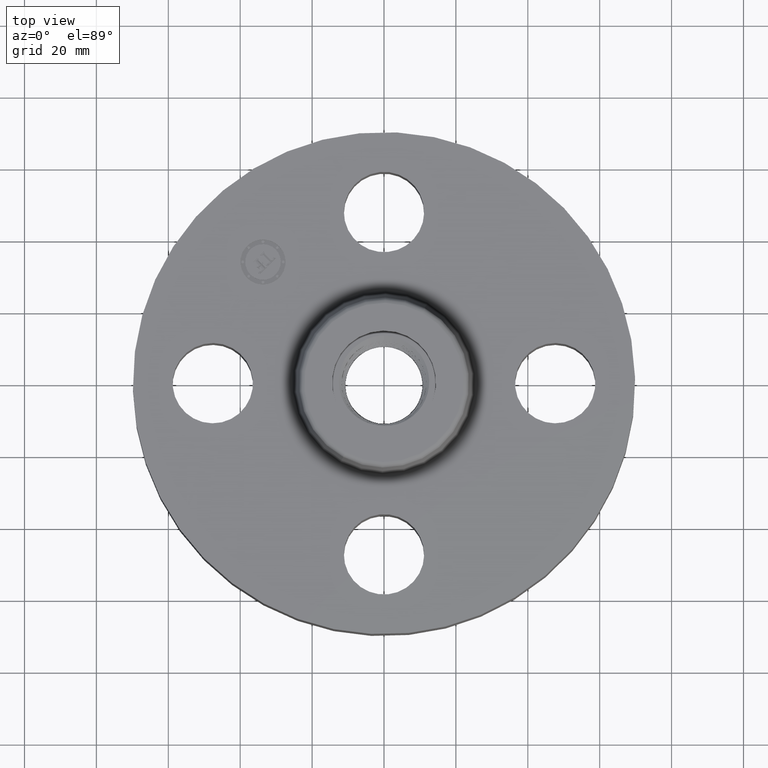
[diagram: clean part render]
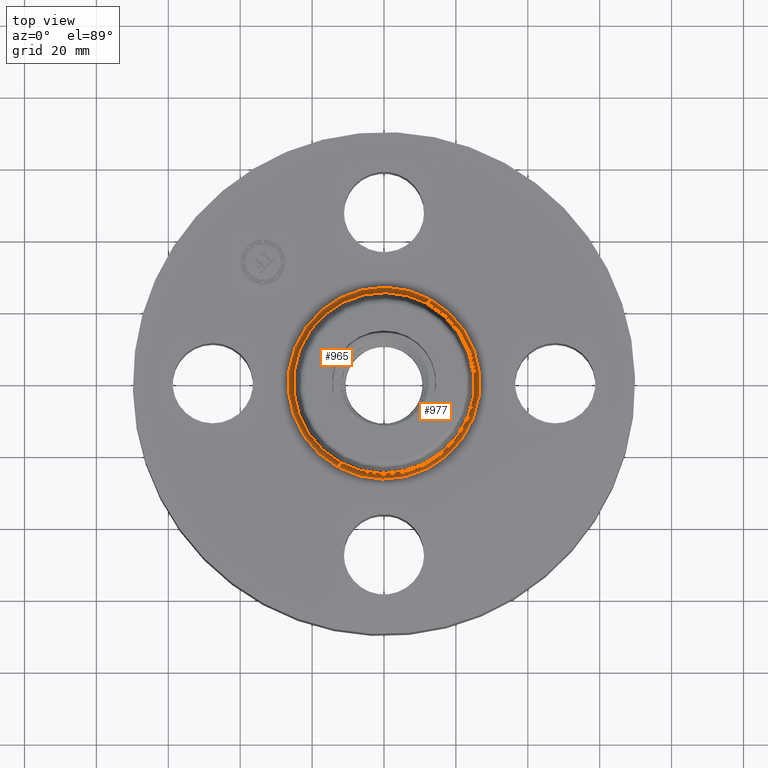
[diagram: same view with one multi-face feature highlighted, each face labeled with its STEP entity id]
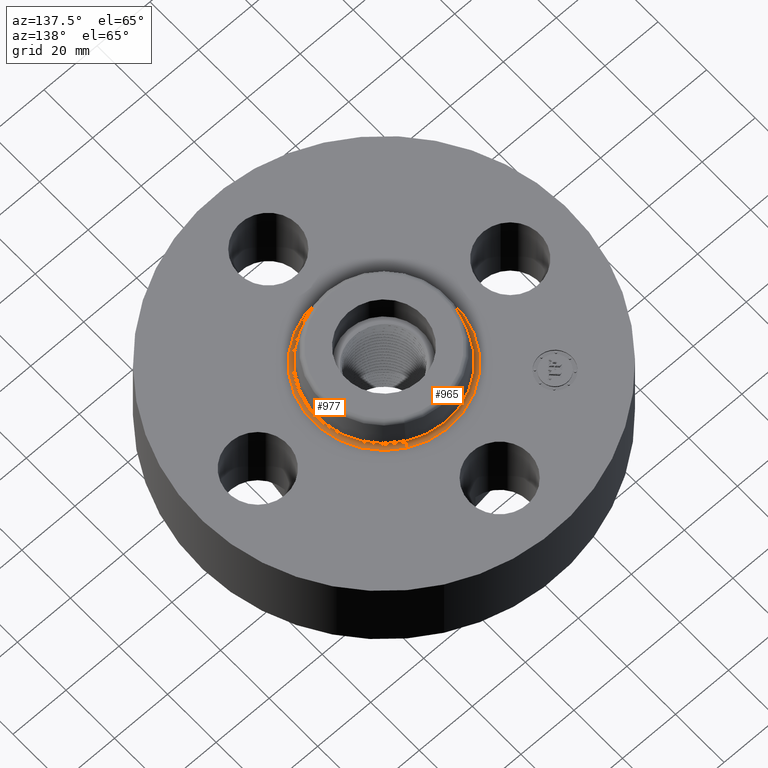
[diagram: same view with one multi-face feature highlighted, each face labeled with its STEP entity id]
A machine part, top view. The highlighted faces form ONE feature: a constant-radius fillet chain: 2 tangent blend faces with common blend radius 1.524 mm. The faces share edges in the B-rep.
A second angle (auxiliary view) of the same feature is appended — it is thin or edge-on in the first view.
Their STEP definitions:
[1] entity #965 (Torus):
#899=AXIS2_PLACEMENT_3D('Circle Axis2P3D',#897,#898,$) ;
#938=AXIS2_PLACEMENT_3D('Torus Axis2P3D',#935,#936,#937) ;
#942=AXIS2_PLACEMENT_3D('Circle Axis2P3D',#940,#941,$) ;
#951=AXIS2_PLACEMENT_3D('Circle Axis2P3D',#949,#950,$) ;
#956=AXIS2_PLACEMENT_3D('Circle Axis2P3D',#954,#955,$) ;
#897=CARTESIAN_POINT('Axis2P3D Location',(0.,0.,1.29958110935)) ;
#901=CARTESIAN_POINT('Vertex',(-0.475234166919,-0.869910307483,1.29958110935)) ;
#903=CARTESIAN_POINT('Vertex',(0.475234166919,0.869910307483,1.29958110935)) ;
#935=CARTESIAN_POINT('Axis2P3D Location',(0.,0.,1.31000000001)) ;
#940=CARTESIAN_POINT('Axis2P3D Location',(0.,0.,1.25000000001)) ;
#944=CARTESIAN_POINT('Vertex',(-0.503562686163,-0.921765314135,1.25000000001)) ;
#946=CARTESIAN_POINT('Vertex',(0.503562686163,0.921765314135,1.25000000001)) ;
#949=CARTESIAN_POINT('Axis2P3D Location',(-0.503562686163,-0.921765314135,1.31000000001)) ;
#954=CARTESIAN_POINT('Axis2P3D Location',(0.503562686163,0.921765314135,1.31000000001)) ;
#898=DIRECTION('Axis2P3D Direction',(0.,0.,-0.0393700787402)) ;
#936=DIRECTION('Axis2P3D Direction',(0.,0.,-0.0393700787402)) ;
#937=DIRECTION('Axis2P3D XDirection',(0.0188750212049,0.0345504945626,0.)) ;
#941=DIRECTION('Axis2P3D Direction',(0.,0.,-0.0393700787402)) ;
#950=DIRECTION('Axis2P3D Direction',(0.0345504945626,-0.0188750212049,0.)) ;
#955=DIRECTION('Axis2P3D Direction',(-0.0345504945626,0.0188750212049,0.)) ;
#960=ORIENTED_EDGE('',*,*,#948,.F.) ;
#961=ORIENTED_EDGE('',*,*,#953,.T.) ;
#962=ORIENTED_EDGE('',*,*,#905,.T.) ;
#963=ORIENTED_EDGE('',*,*,#958,.F.) ;
#965=ADVANCED_FACE('PartBody',(#964),#939,.F.) ;
#900=CIRCLE('generated circle',#899,0.991257512694) ;
#943=CIRCLE('generated circle',#942,1.05034597787) ;
#952=CIRCLE('generated circle',#951,0.0600000000002) ;
#957=CIRCLE('generated circle',#956,0.0600000000002) ;
#939=TOROIDAL_SURFACE('homeo Torus',#938,1.05034597787,0.0600000000002) ;
#905=EDGE_CURVE('',#902,#904,#900,.T.) ;
#948=EDGE_CURVE('',#945,#947,#943,.T.) ;
#953=EDGE_CURVE('',#945,#902,#952,.T.) ;
#958=EDGE_CURVE('',#947,#904,#957,.T.) ;
#959=EDGE_LOOP('',(#960,#961,#962,#963)) ;
#964=FACE_OUTER_BOUND('',#959,.T.) ;
#902=VERTEX_POINT('',#901) ;
#904=VERTEX_POINT('',#903) ;
#945=VERTEX_POINT('',#944) ;
#947=VERTEX_POINT('',#946) ;
[2] entity #977 (Torus):
#925=AXIS2_PLACEMENT_3D('Circle Axis2P3D',#923,#924,$) ;
#938=AXIS2_PLACEMENT_3D('Torus Axis2P3D',#935,#936,#937) ;
#951=AXIS2_PLACEMENT_3D('Circle Axis2P3D',#949,#950,$) ;
#956=AXIS2_PLACEMENT_3D('Circle Axis2P3D',#954,#955,$) ;
#968=AXIS2_PLACEMENT_3D('Circle Axis2P3D',#966,#967,$) ;
#901=CARTESIAN_POINT('Vertex',(-0.475234166919,-0.869910307483,1.29958110935)) ;
#903=CARTESIAN_POINT('Vertex',(0.475234166919,0.869910307483,1.29958110935)) ;
#923=CARTESIAN_POINT('Axis2P3D Location',(0.,0.,1.29958110935)) ;
#935=CARTESIAN_POINT('Axis2P3D Location',(0.,0.,1.31000000001)) ;
#944=CARTESIAN_POINT('Vertex',(-0.503562686163,-0.921765314135,1.25000000001)) ;
#946=CARTESIAN_POINT('Vertex',(0.503562686163,0.921765314135,1.25000000001)) ;
#949=CARTESIAN_POINT('Axis2P3D Location',(-0.503562686163,-0.921765314135,1.31000000001)) ;
#954=CARTESIAN_POINT('Axis2P3D Location',(0.503562686163,0.921765314135,1.31000000001)) ;
#966=CARTESIAN_POINT('Axis2P3D Location',(0.,0.,1.25000000001)) ;
#924=DIRECTION('Axis2P3D Direction',(0.,0.,-0.0393700787402)) ;
#936=DIRECTION('Axis2P3D Direction',(0.,0.,-0.0393700787402)) ;
#937=DIRECTION('Axis2P3D XDirection',(0.0188750212049,0.0345504945626,0.)) ;
#950=DIRECTION('Axis2P3D Direction',(0.0345504945626,-0.0188750212049,0.)) ;
#955=DIRECTION('Axis2P3D Direction',(-0.0345504945626,0.0188750212049,0.)) ;
#967=DIRECTION('Axis2P3D Direction',(0.,0.,-0.0393700787402)) ;
#972=ORIENTED_EDGE('',*,*,#970,.F.) ;
#973=ORIENTED_EDGE('',*,*,#958,.T.) ;
#974=ORIENTED_EDGE('',*,*,#927,.T.) ;
#975=ORIENTED_EDGE('',*,*,#953,.F.) ;
#977=ADVANCED_FACE('PartBody',(#976),#939,.F.) ;
#926=CIRCLE('generated circle',#925,0.991257512694) ;
#952=CIRCLE('generated circle',#951,0.0600000000002) ;
#957=CIRCLE('generated circle',#956,0.0600000000002) ;
#969=CIRCLE('generated circle',#968,1.05034597787) ;
#939=TOROIDAL_SURFACE('homeo Torus',#938,1.05034597787,0.0600000000002) ;
#927=EDGE_CURVE('',#904,#902,#926,.T.) ;
#953=EDGE_CURVE('',#945,#902,#952,.T.) ;
#958=EDGE_CURVE('',#947,#904,#957,.T.) ;
#970=EDGE_CURVE('',#947,#945,#969,.T.) ;
#971=EDGE_LOOP('',(#972,#973,#974,#975)) ;
#976=FACE_OUTER_BOUND('',#971,.T.) ;
#902=VERTEX_POINT('',#901) ;
#904=VERTEX_POINT('',#903) ;
#945=VERTEX_POINT('',#944) ;
#947=VERTEX_POINT('',#946) ;